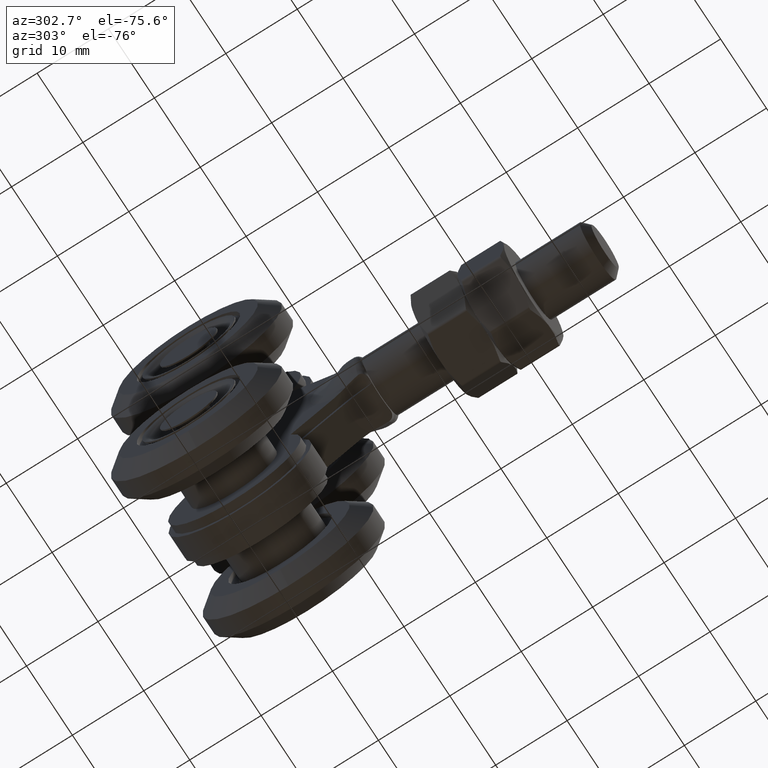
[diagram: clean part render]
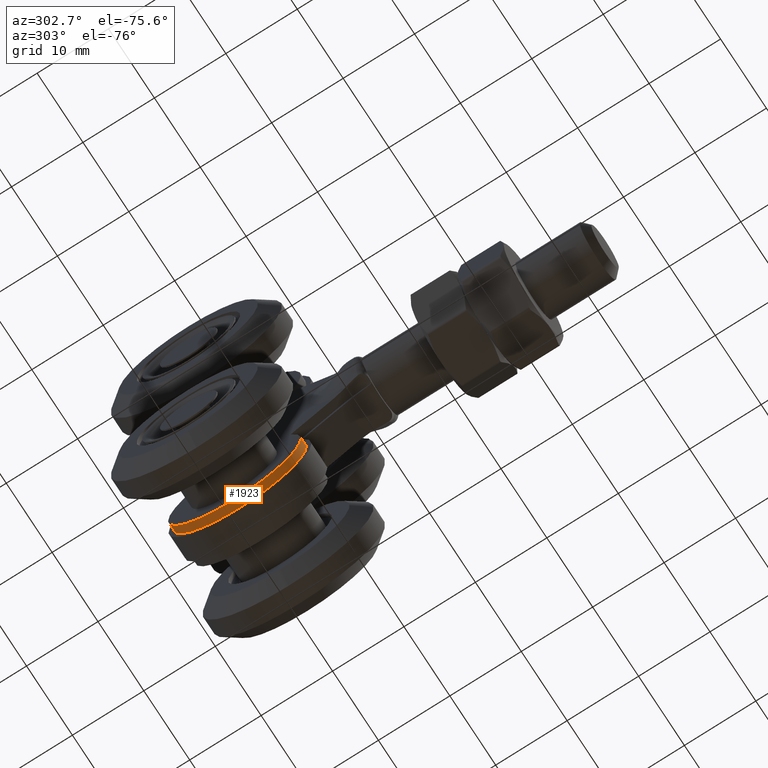
[diagram: same view with one face highlighted and labeled with its STEP entity id]
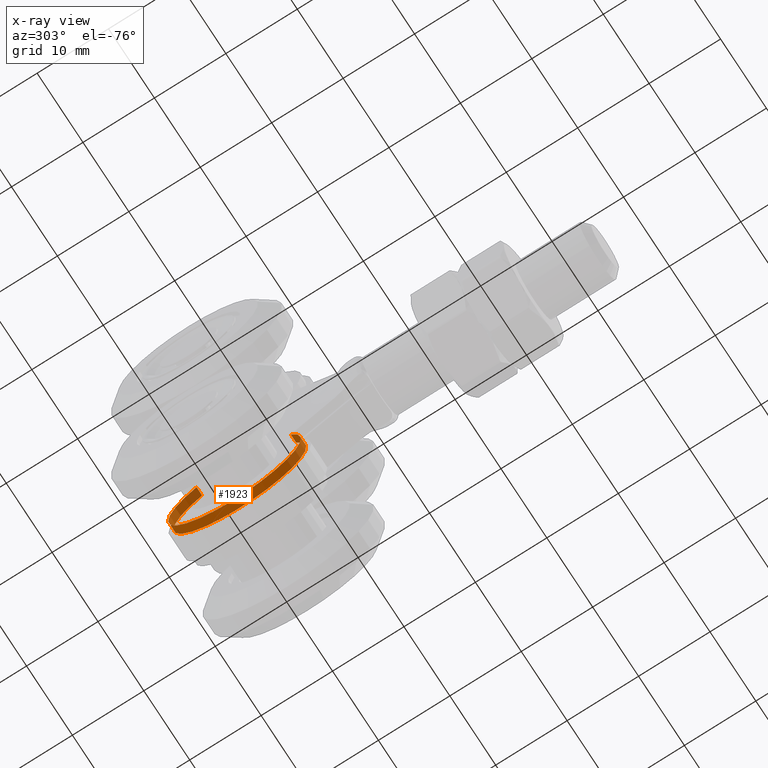
[diagram: x-ray of the same camera — body ghosted, the highlighted face saturated]
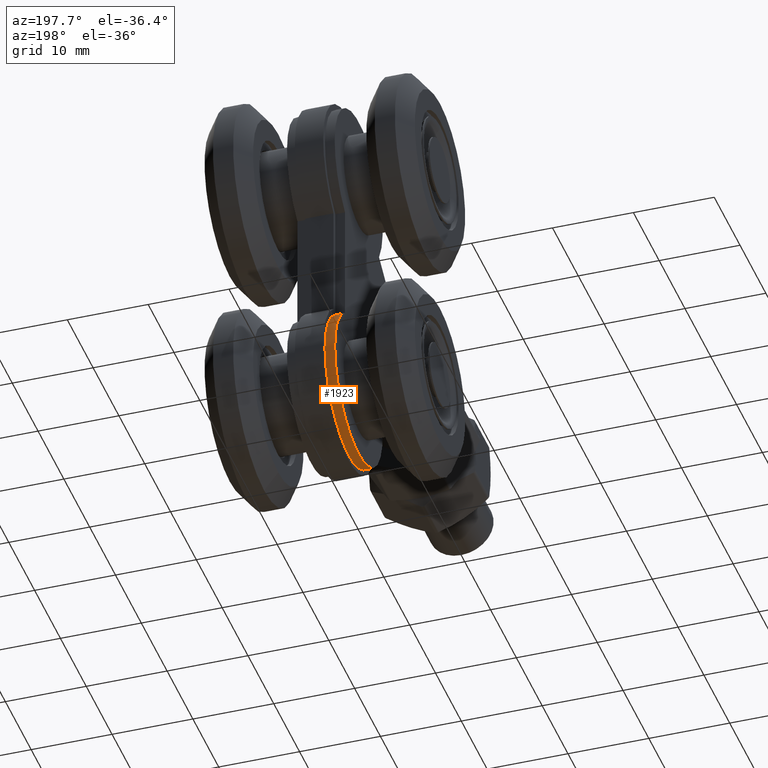
[diagram: same view with one face highlighted and labeled with its STEP entity id]
A machine part, auxiliary view. The second image highlights one B-rep face of the part: STEP entity #1923.
The next image is the same camera in x-ray: the body ghosted, the highlighted face saturated — about 6% of this face is hidden behind the body in this view.
A second angle (auxiliary view) of the same face is appended — the face is thin or edge-on in the first view.
In plain terms, the highlighted cylindrical surface (partial cylindrical patch) has radius 9.3 mm, axis along (-1, -0, -0).
Its self-contained STEP definition (entity closure, byte-faithful):
#145 = VERTEX_POINT ( 'NONE', #8614 ) ;
#282 = CARTESIAN_POINT ( 'NONE',  ( -1.750000000000000444, 11.12686042692909183, -10.04988149001006370 ) ) ;
#1354 = AXIS2_PLACEMENT_3D ( 'NONE', #2217, #4516, #20490 ) ;
#1736 = FACE_OUTER_BOUND ( 'NONE', #26334, .T. ) ;
#1923 = ADVANCED_FACE ( 'NONE', ( #1736 ), #7044, .T. ) ;
#2217 = CARTESIAN_POINT ( 'NONE',  ( -1.750000000000000444, 18.99999999999999645, -14.99999999999999645 ) ) ;
#3556 = CARTESIAN_POINT ( 'NONE',  ( -1.750000000000000444, 24.29999999999999361, -7.358010730182872550 ) ) ;
#4392 = ORIENTED_EDGE ( 'NONE', *, *, #12312, .F. ) ;
#4510 = VECTOR ( 'NONE', #4957, 1000.000000000000000 ) ;
#4516 = DIRECTION ( 'NONE',  ( -1.000000000000000000, -0.000000000000000000, -0.000000000000000000 ) ) ;
#4835 = AXIS2_PLACEMENT_3D ( 'NONE', #11991, #25296, #11783 ) ;
#4957 = DIRECTION ( 'NONE',  ( -1.000000000000000000, -0.000000000000000000, -0.000000000000000000 ) ) ;
#7028 = ORIENTED_EDGE ( 'NONE', *, *, #23300, .T. ) ;
#7044 = CYLINDRICAL_SURFACE ( 'NONE', #1354, 9.300000000000002487 ) ;
#7499 = CARTESIAN_POINT ( 'NONE',  ( -1.750000000000000444, 11.12686042692909183, -10.04988149001006370 ) ) ;
#8614 = CARTESIAN_POINT ( 'NONE',  ( -1.750000000000000444, 24.29999999999999361, -7.358010730182872550 ) ) ;
#8733 = LINE ( 'NONE', #282, #4510 ) ;
#9235 = VERTEX_POINT ( 'NONE', #15423 ) ;
#11783 = DIRECTION ( 'NONE',  ( 0.000000000000000000, 0.000000000000000000, -1.000000000000000000 ) ) ;
#11842 = VECTOR ( 'NONE', #12319, 1000.000000000000000 ) ;
#11859 = EDGE_CURVE ( 'NONE', #26407, #145, #15033, .T. ) ;
#11861 = DIRECTION ( 'NONE',  ( 1.000000000000000000, -0.000000000000000000, -0.000000000000000000 ) ) ;
#11991 = CARTESIAN_POINT ( 'NONE',  ( -2.950000000000000178, 18.99999999999999645, -14.99999999999999645 ) ) ;
#12312 = EDGE_CURVE ( 'NONE', #145, #9235, #26648, .T. ) ;
#12319 = DIRECTION ( 'NONE',  ( -1.000000000000000000, -0.000000000000000000, -0.000000000000000000 ) ) ;
#14038 = CARTESIAN_POINT ( 'NONE',  ( -1.750000000000000444, 18.99999999999999645, -14.99999999999999645 ) ) ;
#15033 = CIRCLE ( 'NONE', #27751, 9.300000000000002487 ) ;
#15423 = CARTESIAN_POINT ( 'NONE',  ( -2.950000000000000178, 24.29999999999999361, -7.358010730182872550 ) ) ;
#15590 = CIRCLE ( 'NONE', #4835, 9.300000000000002487 ) ;
#16332 = DIRECTION ( 'NONE',  ( 0.000000000000000000, 0.000000000000000000, -1.000000000000000000 ) ) ;
#18892 = CARTESIAN_POINT ( 'NONE',  ( -2.950000000000000178, 11.12686042692909183, -10.04988149001006548 ) ) ;
#20490 = DIRECTION ( 'NONE',  ( 0.000000000000000000, 0.000000000000000000, 1.000000000000000000 ) ) ;
#20583 = ORIENTED_EDGE ( 'NONE', *, *, #11859, .F. ) ;
#23300 = EDGE_CURVE ( 'NONE', #26407, #24290, #8733, .T. ) ;
#24184 = ORIENTED_EDGE ( 'NONE', *, *, #28726, .T. ) ;
#24290 = VERTEX_POINT ( 'NONE', #18892 ) ;
#25296 = DIRECTION ( 'NONE',  ( 1.000000000000000000, -0.000000000000000000, -0.000000000000000000 ) ) ;
#26334 = EDGE_LOOP ( 'NONE', ( #24184, #4392, #20583, #7028 ) ) ;
#26407 = VERTEX_POINT ( 'NONE', #7499 ) ;
#26648 = LINE ( 'NONE', #3556, #11842 ) ;
#27751 = AXIS2_PLACEMENT_3D ( 'NONE', #14038, #11861, #16332 ) ;
#28726 = EDGE_CURVE ( 'NONE', #24290, #9235, #15590, .T. ) ;